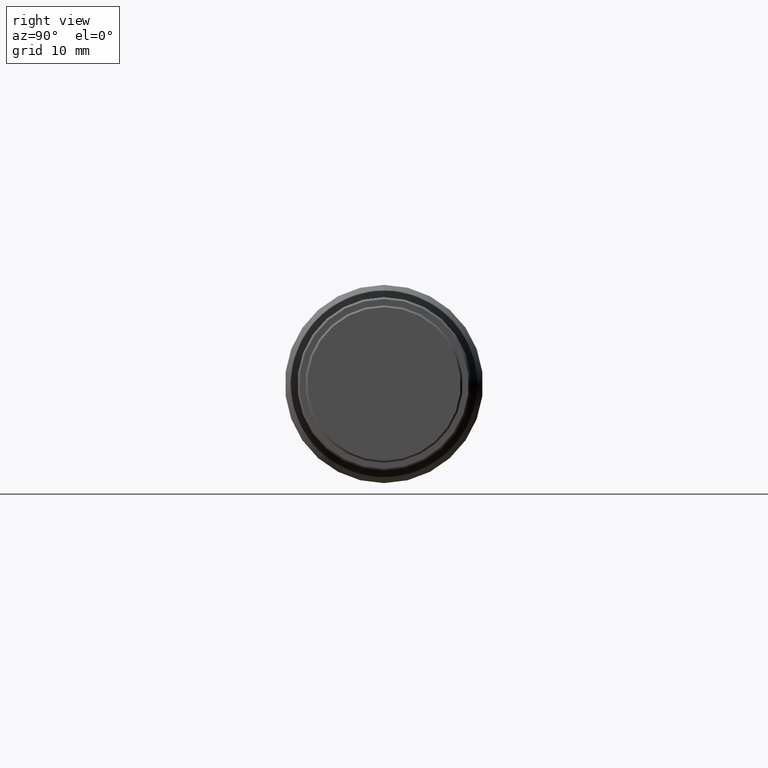
[diagram: clean part render]
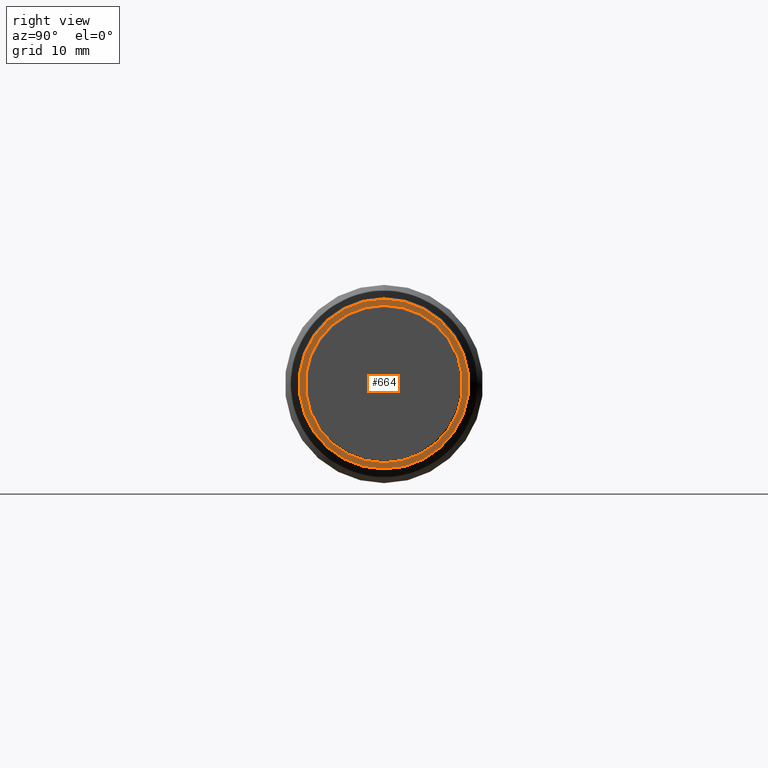
[diagram: same view with one face highlighted and labeled with its STEP entity id]
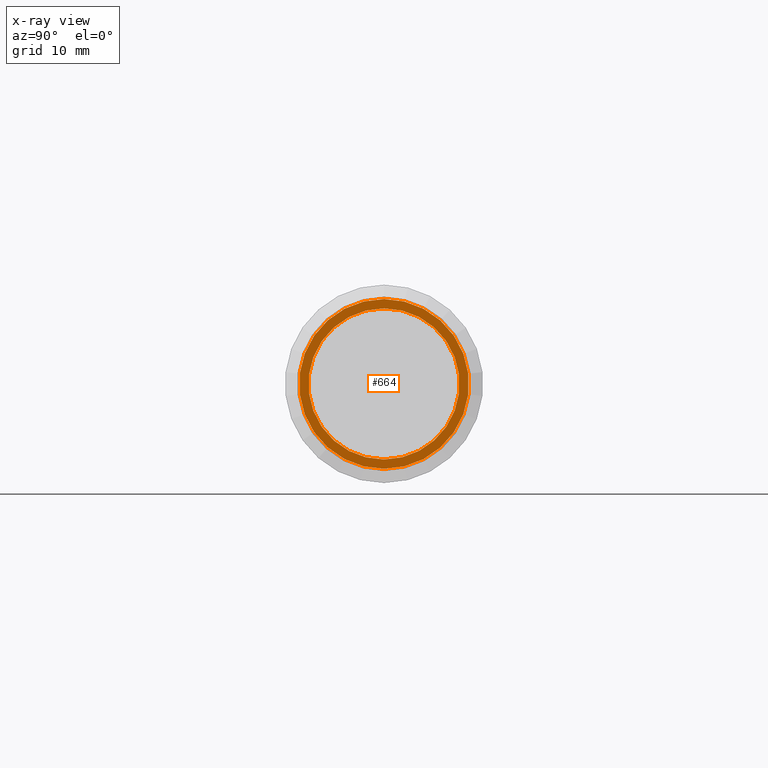
[diagram: x-ray of the same camera — body ghosted, the highlighted face saturated]
A machine part, right view. The second image highlights one B-rep face of the part: STEP entity #664.
The next image is the same camera in x-ray: the body ghosted, the highlighted face saturated — about 0% of this face is hidden behind the body in this view.
In plain terms, the highlighted planar face has unit normal (-1, 0, -0).
Its self-contained STEP definition (entity closure, byte-faithful):
#76 = VERTEX_POINT ( 'NONE', #764 ) ;
#85 = CARTESIAN_POINT ( 'NONE',  ( 105.0999999999999900, 13.70000000000000100, 0.0000000000000000000 ) ) ;
#128 = ORIENTED_EDGE ( 'NONE', *, *, #398, .F. ) ;
#136 = AXIS2_PLACEMENT_3D ( 'NONE', #139, #697, #530 ) ;
#139 = CARTESIAN_POINT ( 'NONE',  ( 105.0999999999999900, 0.0000000000000000000, 0.0000000000000000000 ) ) ;
#162 = CIRCLE ( 'NONE', #245, 13.70000000000000100 ) ;
#182 = DIRECTION ( 'NONE',  ( 0.0000000000000000000, 0.0000000000000000000, 1.000000000000000000 ) ) ;
#195 = AXIS2_PLACEMENT_3D ( 'NONE', #316, #956, #724 ) ;
#213 = CIRCLE ( 'NONE', #136, 12.20000000000000800 ) ;
#215 = VERTEX_POINT ( 'NONE', #233 ) ;
#231 = FACE_OUTER_BOUND ( 'NONE', #913, .T. ) ;
#233 = CARTESIAN_POINT ( 'NONE',  ( 105.0999999999999900, 0.0000000000000000000, 12.20000000000000800 ) ) ;
#237 = PLANE ( 'NONE',  #880 ) ;
#245 = AXIS2_PLACEMENT_3D ( 'NONE', #868, #296, #1006 ) ;
#296 = DIRECTION ( 'NONE',  ( -1.000000000000000000, -0.0000000000000000000, -0.0000000000000000000 ) ) ;
#316 = CARTESIAN_POINT ( 'NONE',  ( 105.0999999999999900, 0.0000000000000000000, 0.0000000000000000000 ) ) ;
#336 = CARTESIAN_POINT ( 'NONE',  ( 105.0999999999999900, 0.0000000000000000000, 13.70000000000000100 ) ) ;
#398 = EDGE_CURVE ( 'NONE', #417, #624, #439, .T. ) ;
#417 = VERTEX_POINT ( 'NONE', #336 ) ;
#439 = CIRCLE ( 'NONE', #818, 13.70000000000000100 ) ;
#472 = DIRECTION ( 'NONE',  ( -1.000000000000000000, 0.0000000000000000000, -0.0000000000000000000 ) ) ;
#479 = CARTESIAN_POINT ( 'NONE',  ( 105.0999999999999900, 1.696135816819084200E-015, -13.70000000000000100 ) ) ;
#498 = CIRCLE ( 'NONE', #195, 12.20000000000000800 ) ;
#508 = EDGE_CURVE ( 'NONE', #624, #417, #162, .T. ) ;
#530 = DIRECTION ( 'NONE',  ( 0.0000000000000000000, 0.0000000000000000000, 1.000000000000000000 ) ) ;
#591 = ORIENTED_EDGE ( 'NONE', *, *, #943, .T. ) ;
#624 = VERTEX_POINT ( 'NONE', #479 ) ;
#626 = FACE_BOUND ( 'NONE', #919, .T. ) ;
#657 = DIRECTION ( 'NONE',  ( -1.000000000000000000, -0.0000000000000000000, -0.0000000000000000000 ) ) ;
#659 = ORIENTED_EDGE ( 'NONE', *, *, #508, .F. ) ;
#664 = ADVANCED_FACE ( 'NONE', ( #231, #626 ), #237, .F. ) ;
#697 = DIRECTION ( 'NONE',  ( -1.000000000000000000, -0.0000000000000000000, -0.0000000000000000000 ) ) ;
#724 = DIRECTION ( 'NONE',  ( 0.0000000000000000000, 0.0000000000000000000, 1.000000000000000000 ) ) ;
#764 = CARTESIAN_POINT ( 'NONE',  ( 105.0999999999999900, 1.494069094959771800E-015, -12.20000000000000800 ) ) ;
#779 = EDGE_CURVE ( 'NONE', #76, #215, #498, .T. ) ;
#818 = AXIS2_PLACEMENT_3D ( 'NONE', #965, #657, #182 ) ;
#868 = CARTESIAN_POINT ( 'NONE',  ( 105.0999999999999900, 0.0000000000000000000, 0.0000000000000000000 ) ) ;
#880 = AXIS2_PLACEMENT_3D ( 'NONE', #85, #472, #941 ) ;
#913 = EDGE_LOOP ( 'NONE', ( #128, #659 ) ) ;
#919 = EDGE_LOOP ( 'NONE', ( #591, #1015 ) ) ;
#941 = DIRECTION ( 'NONE',  ( -0.0000000000000000000, 0.0000000000000000000, 1.000000000000000000 ) ) ;
#943 = EDGE_CURVE ( 'NONE', #215, #76, #213, .T. ) ;
#956 = DIRECTION ( 'NONE',  ( -1.000000000000000000, -0.0000000000000000000, -0.0000000000000000000 ) ) ;
#965 = CARTESIAN_POINT ( 'NONE',  ( 105.0999999999999900, 0.0000000000000000000, 0.0000000000000000000 ) ) ;
#1006 = DIRECTION ( 'NONE',  ( 0.0000000000000000000, 0.0000000000000000000, 1.000000000000000000 ) ) ;
#1015 = ORIENTED_EDGE ( 'NONE', *, *, #779, .T. ) ;